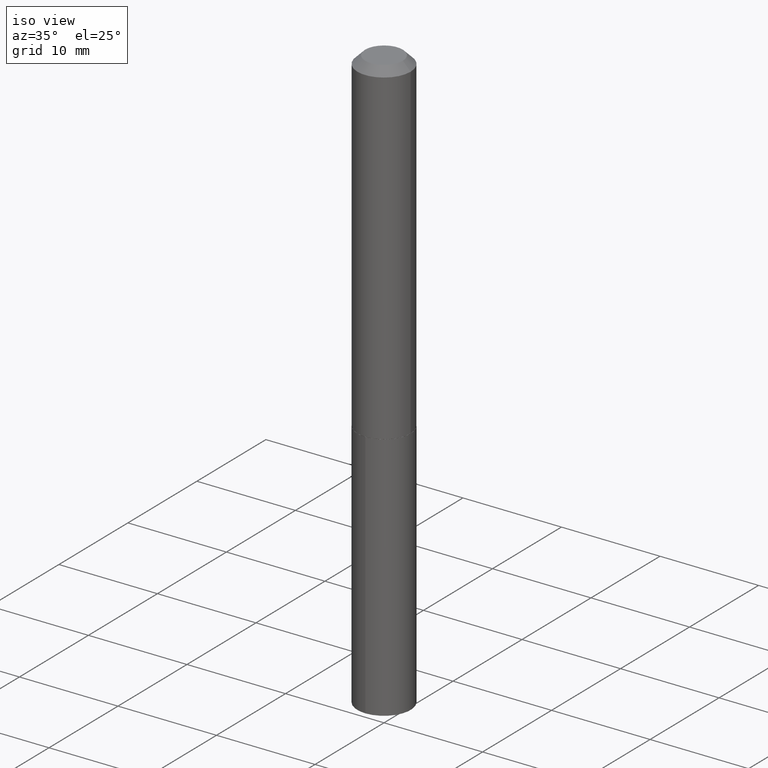
[diagram: clean part render]
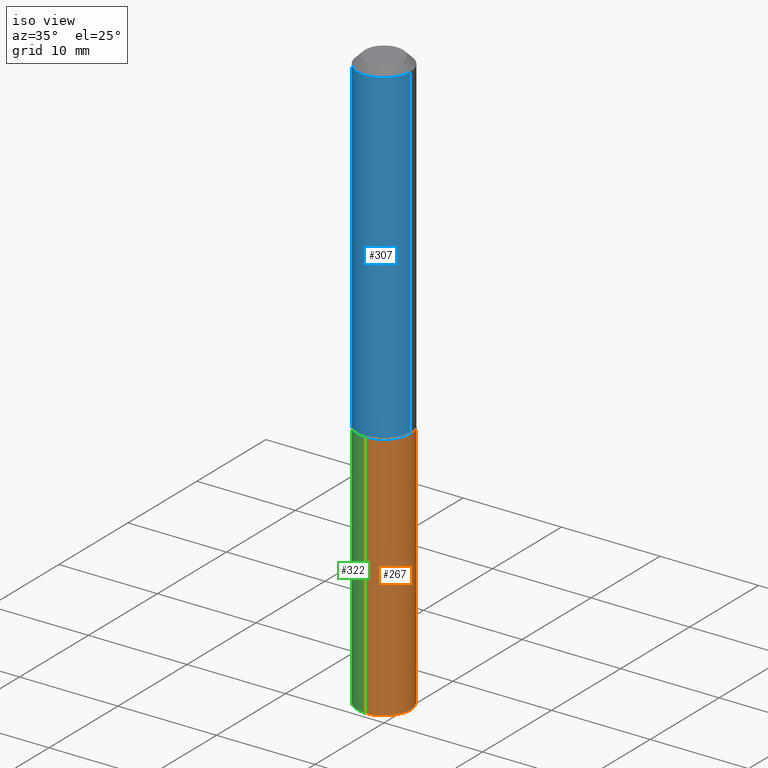
[diagram: same view with three faces highlighted in distinct colors, each labeled with its STEP entity id]
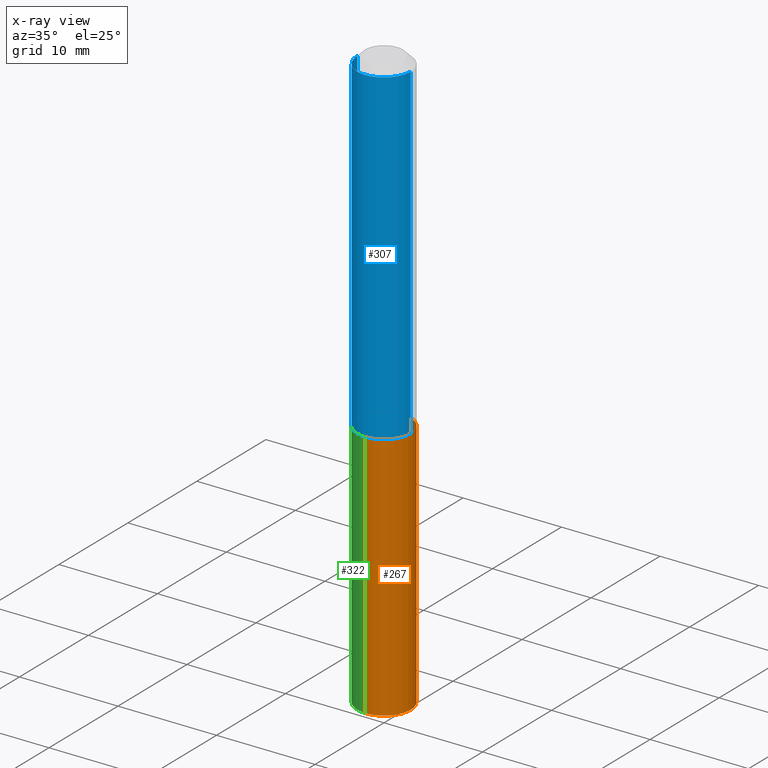
[diagram: x-ray of the same camera — body ghosted, the three highlighted faces saturated]
A machine part, iso view with three faces highlighted in distinct colors.
The next image is the same camera in x-ray (body ghosted, the three faces saturated) — at least one of them is partly hidden behind the body in this view.
Their STEP definitions:

[orange] entity #267 — the highlighted cylindrical surface (edge-blend (fillet) strip) has radius 2.7051 mm, axis along (-0, 0, 1).
#3 = ORIENTED_EDGE ( 'NONE', *, *, #158, .T. ) ;
#8 = AXIS2_PLACEMENT_3D ( 'NONE', #228, #181, #309 ) ;
#32 = DIRECTION ( 'NONE',  ( -2.445362574665431323E-29, 3.491633468425686923E-15, 1.000000000000000000 ) ) ;
#55 = EDGE_CURVE ( 'NONE', #303, #378, #289, .T. ) ;
#56 = DIRECTION ( 'NONE',  ( -6.982962677686265133E-15, -1.000000000000000000, 2.565115487008698002E-15 ) ) ;
#64 = VERTEX_POINT ( 'NONE', #119 ) ;
#72 = CARTESIAN_POINT ( 'NONE',  ( 5.713089078957504114E-29, -8.157080343747521940E-15, -2.336237170050650125 ) ) ;
#87 = AXIS2_PLACEMENT_3D ( 'NONE', #256, #381, #56 ) ;
#98 = DIRECTION ( 'NONE',  ( -2.445362574665431043E-29, 3.491633468425686528E-15, 1.000000000000000000 ) ) ;
#109 = CARTESIAN_POINT ( 'NONE',  ( -7.436855251735545052E-16, -0.1065000000000046743, -1.337999999999999856 ) ) ;
#119 = CARTESIAN_POINT ( 'NONE',  ( -7.436855251735300505E-16, -0.1065000000000081160, -2.336237170050649681 ) ) ;
#130 = CARTESIAN_POINT ( 'NONE',  ( 7.567280135845393189E-16, 0.1064999999999953206, -1.338000000000000300 ) ) ;
#158 = EDGE_CURVE ( 'NONE', #297, #378, #220, .T. ) ;
#163 = CARTESIAN_POINT ( 'NONE',  ( 7.567280135845637736E-16, 0.1064999999999953206, -1.338000000000000300 ) ) ;
#164 = ORIENTED_EDGE ( 'NONE', *, *, #55, .F. ) ;
#181 = DIRECTION ( 'NONE',  ( -2.445362574665431043E-29, 3.491633468425686528E-15, 1.000000000000000000 ) ) ;
#184 = VECTOR ( 'NONE', #285, 39.37007874015748143 ) ;
#197 = LINE ( 'NONE', #319, #360 ) ;
#213 = AXIS2_PLACEMENT_3D ( 'NONE', #72, #98, #313 ) ;
#220 = LINE ( 'NONE', #130, #184 ) ;
#228 = CARTESIAN_POINT ( 'NONE',  ( 3.272037262675712888E-29, -4.671602031372128143E-15, -1.338000000000000078 ) ) ;
#237 = EDGE_CURVE ( 'NONE', #64, #297, #248, .T. ) ;
#248 = CIRCLE ( 'NONE', #213, 0.1064999999999999974 ) ;
#253 = EDGE_LOOP ( 'NONE', ( #373, #3, #164, #311 ) ) ;
#256 = CARTESIAN_POINT ( 'NONE',  ( 3.272037262675712888E-29, -4.671602031372128143E-15, -1.338000000000000078 ) ) ;
#263 = FACE_OUTER_BOUND ( 'NONE', #253, .T. ) ;
#267 = ADVANCED_FACE ( 'NONE', ( #263 ), #280, .T. ) ;
#280 = CYLINDRICAL_SURFACE ( 'NONE', #8, 0.1064999999999999974 ) ;
#285 = DIRECTION ( 'NONE',  ( -2.445362574665431323E-29, 3.491633468425686923E-15, 1.000000000000000000 ) ) ;
#289 = CIRCLE ( 'NONE', #87, 0.1064999999999999974 ) ;
#297 = VERTEX_POINT ( 'NONE', #304 ) ;
#299 = EDGE_CURVE ( 'NONE', #64, #303, #197, .T. ) ;
#303 = VERTEX_POINT ( 'NONE', #109 ) ;
#304 = CARTESIAN_POINT ( 'NONE',  ( 7.567280135845635764E-16, 0.1064999999999918096, -2.336237170050650125 ) ) ;
#309 = DIRECTION ( 'NONE',  ( -6.982962677686265133E-15, -1.000000000000000000, 2.565115487008698002E-15 ) ) ;
#311 = ORIENTED_EDGE ( 'NONE', *, *, #299, .F. ) ;
#313 = DIRECTION ( 'NONE',  ( -6.982962677686265133E-15, -1.000000000000000000, 2.565115487008698002E-15 ) ) ;
#319 = CARTESIAN_POINT ( 'NONE',  ( -7.436855251735545052E-16, -0.1065000000000046743, -1.337999999999999856 ) ) ;
#360 = VECTOR ( 'NONE', #32, 39.37007874015748143 ) ;
#373 = ORIENTED_EDGE ( 'NONE', *, *, #237, .T. ) ;
#378 = VERTEX_POINT ( 'NONE', #163 ) ;
#381 = DIRECTION ( 'NONE',  ( -2.445362574665431043E-29, 3.491633468425686528E-15, 1.000000000000000000 ) ) ;

[blue] entity #307 — the highlighted cylindrical surface (edge-blend (fillet) strip) has radius 2.7051 mm, axis along (-0, 0, 1).
#4 = FACE_OUTER_BOUND ( 'NONE', #274, .T. ) ;
#25 = DIRECTION ( 'NONE',  ( -2.445468806185136877E-29, 3.491481338843145188E-15, 1.000000000000000000 ) ) ;
#65 = CIRCLE ( 'NONE', #358, 0.1065000000000001640 ) ;
#66 = VECTOR ( 'NONE', #25, 39.37007874015748143 ) ;
#69 = EDGE_CURVE ( 'NONE', #71, #306, #147, .T. ) ;
#71 = VERTEX_POINT ( 'NONE', #292 ) ;
#78 = ORIENTED_EDGE ( 'NONE', *, *, #69, .F. ) ;
#82 = CYLINDRICAL_SURFACE ( 'NONE', #148, 0.1065000000000000807 ) ;
#86 = DIRECTION ( 'NONE',  ( -2.445468806185136597E-29, 3.491481338843145583E-15, 1.000000000000000000 ) ) ;
#91 = DIRECTION ( 'NONE',  ( -2.445468806185136597E-29, 3.491481338843145583E-15, 1.000000000000000000 ) ) ;
#101 = EDGE_CURVE ( 'NONE', #145, #306, #115, .T. ) ;
#115 = LINE ( 'NONE', #390, #212 ) ;
#117 = CARTESIAN_POINT ( 'NONE',  ( -0.1065000000000001640, -3.913128277118200453E-15, -1.337500000000000133 ) ) ;
#137 = EDGE_CURVE ( 'NONE', #361, #145, #65, .T. ) ;
#144 = DIRECTION ( 'NONE',  ( 1.000000000000000000, -6.982962677686262766E-15, 0.000000000000000000 ) ) ;
#145 = VERTEX_POINT ( 'NONE', #271 ) ;
#147 = CIRCLE ( 'NONE', #347, 0.1065000000000000113 ) ;
#148 = AXIS2_PLACEMENT_3D ( 'NONE', #207, #354, #230 ) ;
#167 = CARTESIAN_POINT ( 'NONE',  ( 0.1065000000000000113, -8.527943170124366394E-16, -0.03125000000000020817 ) ) ;
#172 = CARTESIAN_POINT ( 'NONE',  ( 7.642090019328602662E-31, -1.091087918388490267E-16, -0.03125000000000020817 ) ) ;
#195 = LINE ( 'NONE', #296, #66 ) ;
#201 = CARTESIAN_POINT ( 'NONE',  ( 3.270814528272620647E-29, -4.669856290702708218E-15, -1.337500000000000133 ) ) ;
#206 = ORIENTED_EDGE ( 'NONE', *, *, #137, .T. ) ;
#207 = CARTESIAN_POINT ( 'NONE',  ( 0.000000000000000000, 0.000000000000000000, 0.000000000000000000 ) ) ;
#212 = VECTOR ( 'NONE', #359, 39.37007874015748143 ) ;
#230 = DIRECTION ( 'NONE',  ( 1.000000000000000000, -6.982962677686267499E-15, 4.876176775795935232E-29 ) ) ;
#271 = CARTESIAN_POINT ( 'NONE',  ( 0.1065000000000001640, -5.413541815876296348E-15, -1.337500000000000133 ) ) ;
#274 = EDGE_LOOP ( 'NONE', ( #290, #206, #321, #78 ) ) ;
#290 = ORIENTED_EDGE ( 'NONE', *, *, #336, .F. ) ;
#292 = CARTESIAN_POINT ( 'NONE',  ( -0.1065000000000000113, -1.632754527686270697E-15, -0.03125000000000020817 ) ) ;
#294 = DIRECTION ( 'NONE',  ( 1.000000000000000000, -6.982962677686267499E-15, 0.000000000000000000 ) ) ;
#296 = CARTESIAN_POINT ( 'NONE',  ( -0.1065000000000000807, 7.567280135845072715E-16, -5.238665871121478096E-30 ) ) ;
#306 = VERTEX_POINT ( 'NONE', #167 ) ;
#307 = ADVANCED_FACE ( 'NONE', ( #4 ), #82, .T. ) ;
#321 = ORIENTED_EDGE ( 'NONE', *, *, #101, .T. ) ;
#336 = EDGE_CURVE ( 'NONE', #361, #71, #195, .T. ) ;
#347 = AXIS2_PLACEMENT_3D ( 'NONE', #172, #86, #294 ) ;
#354 = DIRECTION ( 'NONE',  ( -2.445468806185136597E-29, 3.491481338843145583E-15, 1.000000000000000000 ) ) ;
#358 = AXIS2_PLACEMENT_3D ( 'NONE', #201, #91, #144 ) ;
#359 = DIRECTION ( 'NONE',  ( -2.445468806185136877E-29, 3.491481338843145188E-15, 1.000000000000000000 ) ) ;
#361 = VERTEX_POINT ( 'NONE', #117 ) ;
#390 = CARTESIAN_POINT ( 'NONE',  ( 0.1065000000000000807, -7.436855251735880318E-16, 5.193128266222675235E-30 ) ) ;

[green] entity #322 — the highlighted cylindrical surface (edge-blend (fillet) strip) has radius 2.7051 mm, axis along (-0, 0, 1).
#1 = DIRECTION ( 'NONE',  ( -6.982962677686265133E-15, -1.000000000000000000, 2.565115487008698002E-15 ) ) ;
#29 = CARTESIAN_POINT ( 'NONE',  ( 5.713089078957504114E-29, -8.157080343747521940E-15, -2.336237170050650125 ) ) ;
#32 = DIRECTION ( 'NONE',  ( -2.445362574665431323E-29, 3.491633468425686923E-15, 1.000000000000000000 ) ) ;
#53 = FACE_OUTER_BOUND ( 'NONE', #249, .T. ) ;
#64 = VERTEX_POINT ( 'NONE', #119 ) ;
#85 = DIRECTION ( 'NONE',  ( -2.445362574665431043E-29, 3.491633468425686528E-15, 1.000000000000000000 ) ) ;
#95 = CIRCLE ( 'NONE', #174, 0.1064999999999999974 ) ;
#109 = CARTESIAN_POINT ( 'NONE',  ( -7.436855251735545052E-16, -0.1065000000000046743, -1.337999999999999856 ) ) ;
#119 = CARTESIAN_POINT ( 'NONE',  ( -7.436855251735300505E-16, -0.1065000000000081160, -2.336237170050649681 ) ) ;
#130 = CARTESIAN_POINT ( 'NONE',  ( 7.567280135845393189E-16, 0.1064999999999953206, -1.338000000000000300 ) ) ;
#138 = CARTESIAN_POINT ( 'NONE',  ( 3.272037262675712888E-29, -4.671602031372128143E-15, -1.338000000000000078 ) ) ;
#146 = DIRECTION ( 'NONE',  ( -6.982962677686265133E-15, -1.000000000000000000, 2.565115487008698002E-15 ) ) ;
#150 = EDGE_CURVE ( 'NONE', #297, #64, #232, .T. ) ;
#157 = ORIENTED_EDGE ( 'NONE', *, *, #340, .F. ) ;
#158 = EDGE_CURVE ( 'NONE', #297, #378, #220, .T. ) ;
#163 = CARTESIAN_POINT ( 'NONE',  ( 7.567280135845637736E-16, 0.1064999999999953206, -1.338000000000000300 ) ) ;
#174 = AXIS2_PLACEMENT_3D ( 'NONE', #138, #85, #146 ) ;
#175 = ORIENTED_EDGE ( 'NONE', *, *, #158, .F. ) ;
#184 = VECTOR ( 'NONE', #285, 39.37007874015748143 ) ;
#197 = LINE ( 'NONE', #319, #360 ) ;
#220 = LINE ( 'NONE', #130, #184 ) ;
#232 = CIRCLE ( 'NONE', #334, 0.1064999999999999974 ) ;
#239 = CARTESIAN_POINT ( 'NONE',  ( 3.272037262675712888E-29, -4.671602031372128143E-15, -1.338000000000000078 ) ) ;
#249 = EDGE_LOOP ( 'NONE', ( #175, #383, #254, #157 ) ) ;
#254 = ORIENTED_EDGE ( 'NONE', *, *, #299, .T. ) ;
#273 = DIRECTION ( 'NONE',  ( -2.445362574665431043E-29, 3.491633468425686528E-15, 1.000000000000000000 ) ) ;
#281 = AXIS2_PLACEMENT_3D ( 'NONE', #239, #357, #389 ) ;
#285 = DIRECTION ( 'NONE',  ( -2.445362574665431323E-29, 3.491633468425686923E-15, 1.000000000000000000 ) ) ;
#297 = VERTEX_POINT ( 'NONE', #304 ) ;
#299 = EDGE_CURVE ( 'NONE', #64, #303, #197, .T. ) ;
#303 = VERTEX_POINT ( 'NONE', #109 ) ;
#304 = CARTESIAN_POINT ( 'NONE',  ( 7.567280135845635764E-16, 0.1064999999999918096, -2.336237170050650125 ) ) ;
#319 = CARTESIAN_POINT ( 'NONE',  ( -7.436855251735545052E-16, -0.1065000000000046743, -1.337999999999999856 ) ) ;
#322 = ADVANCED_FACE ( 'NONE', ( #53 ), #384, .T. ) ;
#334 = AXIS2_PLACEMENT_3D ( 'NONE', #29, #273, #1 ) ;
#340 = EDGE_CURVE ( 'NONE', #378, #303, #95, .T. ) ;
#357 = DIRECTION ( 'NONE',  ( -2.445362574665431043E-29, 3.491633468425686528E-15, 1.000000000000000000 ) ) ;
#360 = VECTOR ( 'NONE', #32, 39.37007874015748143 ) ;
#378 = VERTEX_POINT ( 'NONE', #163 ) ;
#383 = ORIENTED_EDGE ( 'NONE', *, *, #150, .T. ) ;
#384 = CYLINDRICAL_SURFACE ( 'NONE', #281, 0.1064999999999999974 ) ;
#389 = DIRECTION ( 'NONE',  ( -6.982962677686265133E-15, -1.000000000000000000, 2.565115487008698002E-15 ) ) ;